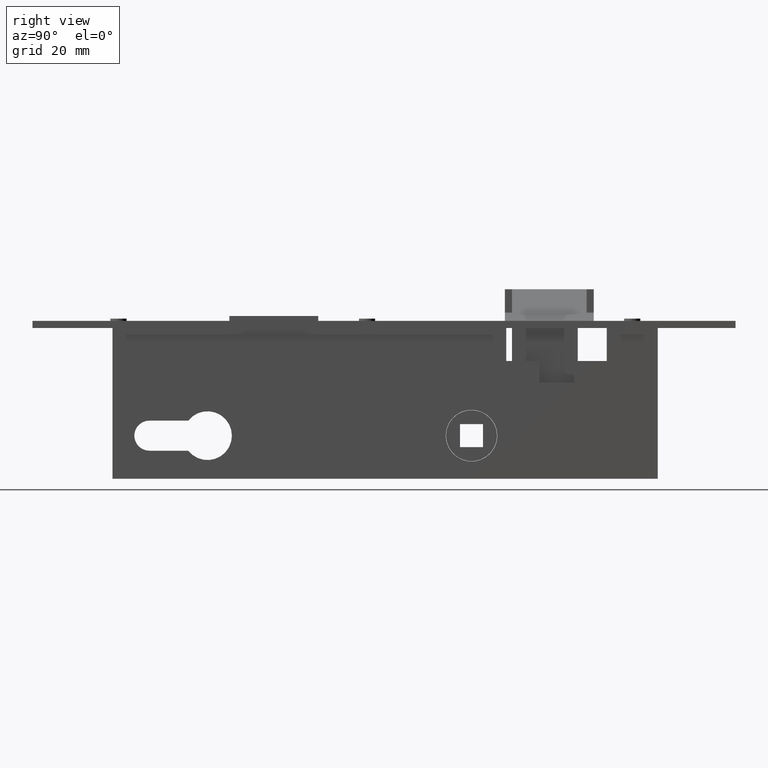
[diagram: clean part render]
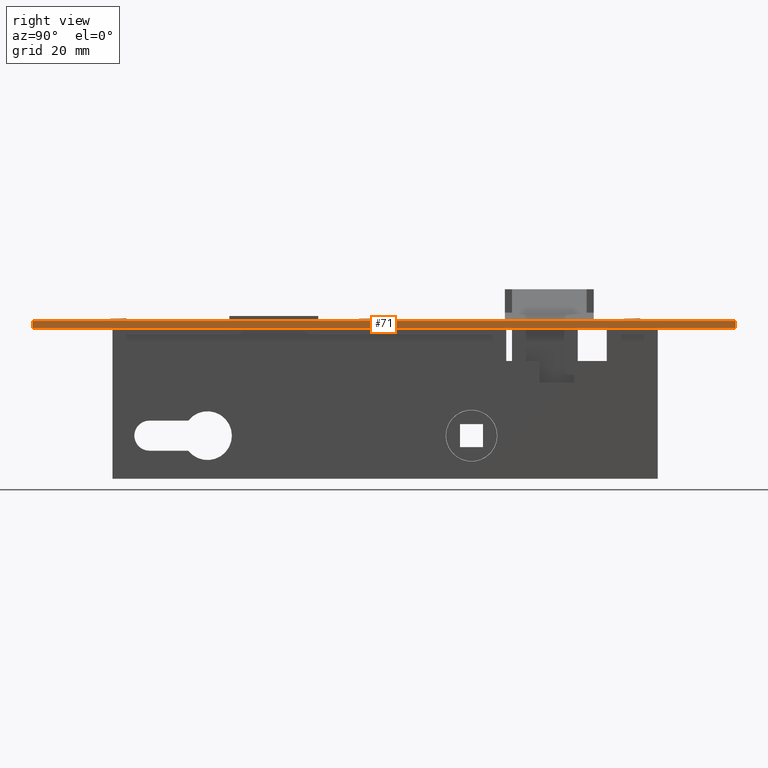
[diagram: same view with one face highlighted and labeled with its STEP entity id]
A machine part, right view. The second image highlights one B-rep face of the part: STEP entity #71.
In plain terms, the highlighted planar face has unit normal (-1, 0, 0).
Its self-contained STEP definition (entity closure, byte-faithful):
#71 = ADVANCED_FACE ( 'NONE', ( #21734 ), #19458, .F. ) ;
#1200 = CARTESIAN_POINT ( 'NONE',  ( 12.00000000000000000, 0.0000000000000000000, 0.0000000000000000000 ) ) ;
#2414 = CARTESIAN_POINT ( 'NONE',  ( 12.00000000000000000, 0.0000000000000000000, 0.0000000000000000000 ) ) ;
#3330 = CARTESIAN_POINT ( 'NONE',  ( 12.00000000000000000, 0.0000000000000000000, 2.500000000000000000 ) ) ;
#3778 = VECTOR ( 'NONE', #14340, 1000.000000000000000 ) ;
#4082 = CARTESIAN_POINT ( 'NONE',  ( 12.00000000000000000, 0.0000000000000000000, 2.500000000000000000 ) ) ;
#4466 = LINE ( 'NONE', #20615, #5301 ) ;
#5301 = VECTOR ( 'NONE', #13326, 1000.000000000000000 ) ;
#6047 = ORIENTED_EDGE ( 'NONE', *, *, #14459, .T. ) ;
#6360 = DIRECTION ( 'NONE',  ( 0.0000000000000000000, 1.000000000000000000, 0.0000000000000000000 ) ) ;
#6604 = EDGE_LOOP ( 'NONE', ( #18013, #14113, #16311, #6047 ) ) ;
#6871 = LINE ( 'NONE', #16144, #3778 ) ;
#6932 = DIRECTION ( 'NONE',  ( -0.0000000000000000000, -0.0000000000000000000, -1.000000000000000000 ) ) ;
#7430 = VERTEX_POINT ( 'NONE', #12537 ) ;
#7959 = VERTEX_POINT ( 'NONE', #4082 ) ;
#8650 = VERTEX_POINT ( 'NONE', #21871 ) ;
#10212 = VECTOR ( 'NONE', #6932, 1000.000000000000000 ) ;
#12158 = DIRECTION ( 'NONE',  ( 0.0000000000000000000, 0.0000000000000000000, 1.000000000000000000 ) ) ;
#12537 = CARTESIAN_POINT ( 'NONE',  ( 12.00000000000000000, 245.0000000000000000, 0.0000000000000000000 ) ) ;
#13155 = VECTOR ( 'NONE', #6360, 1000.000000000000000 ) ;
#13326 = DIRECTION ( 'NONE',  ( 0.0000000000000000000, 1.000000000000000000, 0.0000000000000000000 ) ) ;
#14113 = ORIENTED_EDGE ( 'NONE', *, *, #17477, .F. ) ;
#14272 = CARTESIAN_POINT ( 'NONE',  ( 12.00000000000000000, 0.0000000000000000000, 2.500000000000000000 ) ) ;
#14340 = DIRECTION ( 'NONE',  ( -0.0000000000000000000, -0.0000000000000000000, -1.000000000000000000 ) ) ;
#14459 = EDGE_CURVE ( 'NONE', #7959, #19234, #14957, .T. ) ;
#14957 = LINE ( 'NONE', #3330, #10212 ) ;
#16144 = CARTESIAN_POINT ( 'NONE',  ( 12.00000000000000000, 245.0000000000000000, 2.500000000000000000 ) ) ;
#16311 = ORIENTED_EDGE ( 'NONE', *, *, #22994, .F. ) ;
#16759 = AXIS2_PLACEMENT_3D ( 'NONE', #14272, #17499, #12158 ) ;
#17477 = EDGE_CURVE ( 'NONE', #8650, #7430, #6871, .T. ) ;
#17499 = DIRECTION ( 'NONE',  ( -1.000000000000000000, 0.0000000000000000000, 0.0000000000000000000 ) ) ;
#17922 = LINE ( 'NONE', #1200, #13155 ) ;
#18013 = ORIENTED_EDGE ( 'NONE', *, *, #19878, .T. ) ;
#19234 = VERTEX_POINT ( 'NONE', #2414 ) ;
#19458 = PLANE ( 'NONE',  #16759 ) ;
#19878 = EDGE_CURVE ( 'NONE', #19234, #7430, #17922, .T. ) ;
#20615 = CARTESIAN_POINT ( 'NONE',  ( 12.00000000000000000, 0.0000000000000000000, 2.500000000000000000 ) ) ;
#21734 = FACE_OUTER_BOUND ( 'NONE', #6604, .T. ) ;
#21871 = CARTESIAN_POINT ( 'NONE',  ( 12.00000000000000000, 245.0000000000000000, 2.500000000000000000 ) ) ;
#22994 = EDGE_CURVE ( 'NONE', #7959, #8650, #4466, .T. ) ;